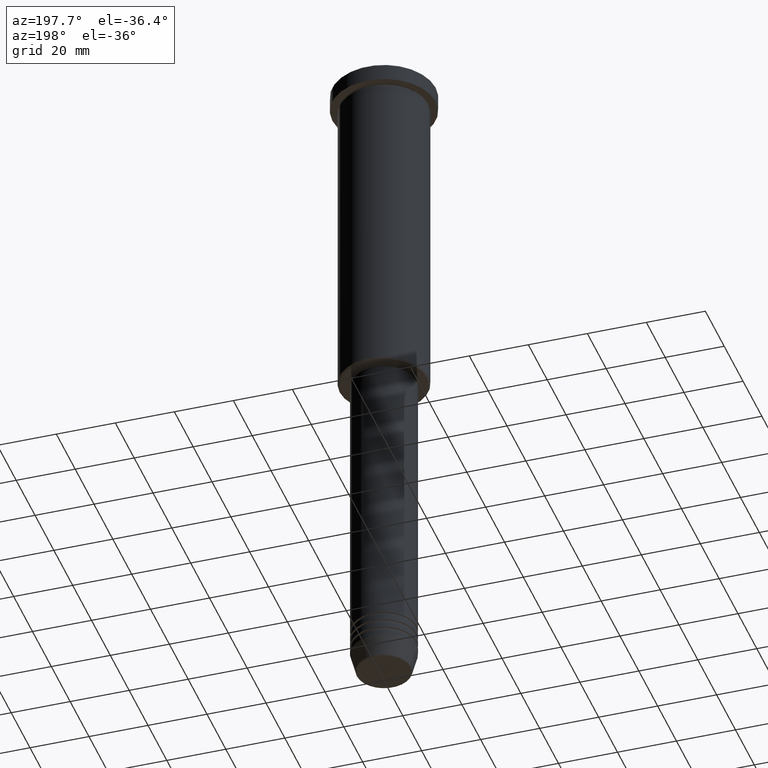
[diagram: clean part render]
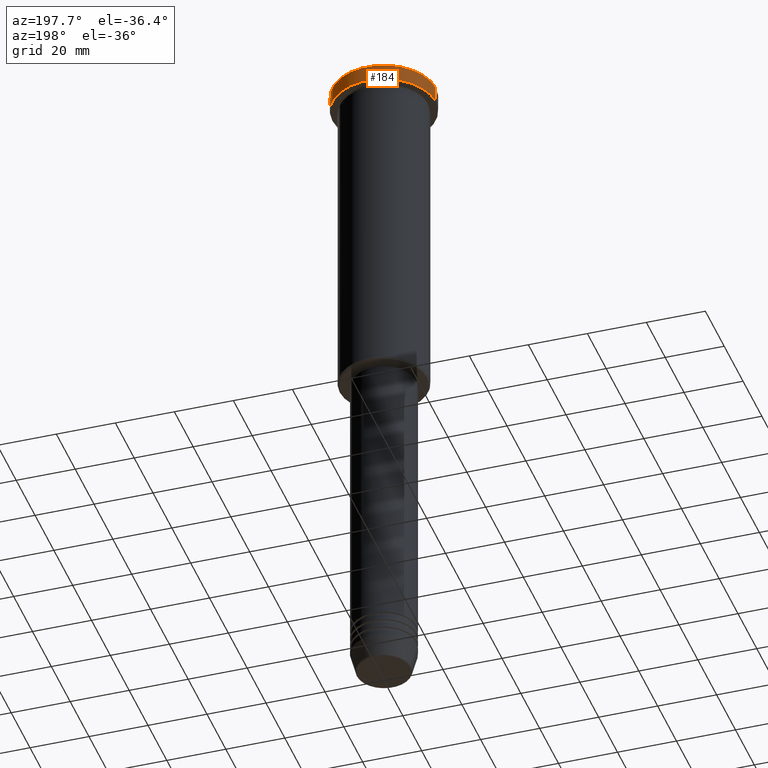
[diagram: same view with one face highlighted and labeled with its STEP entity id]
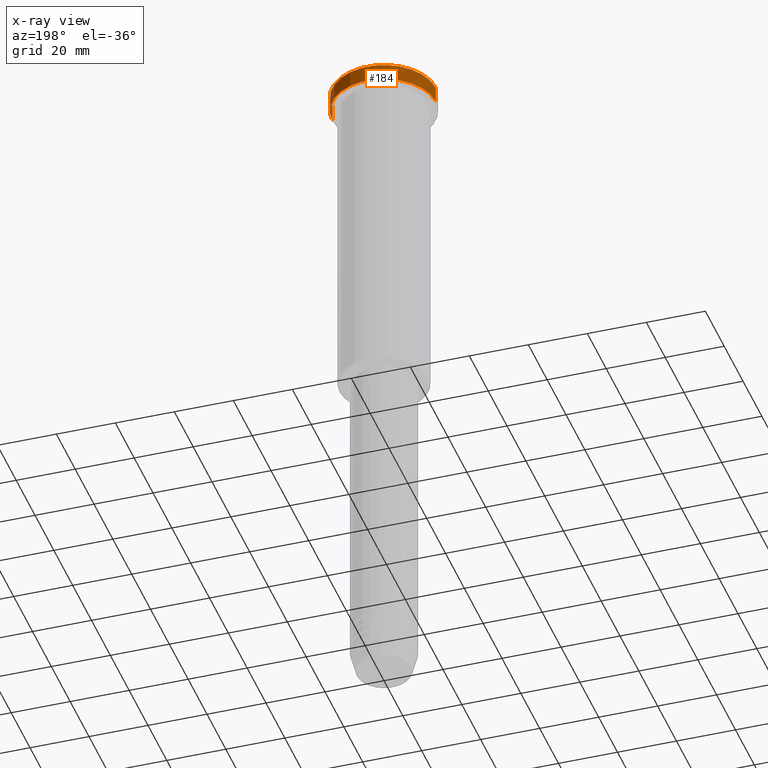
[diagram: x-ray of the same camera — body ghosted, the highlighted face saturated]
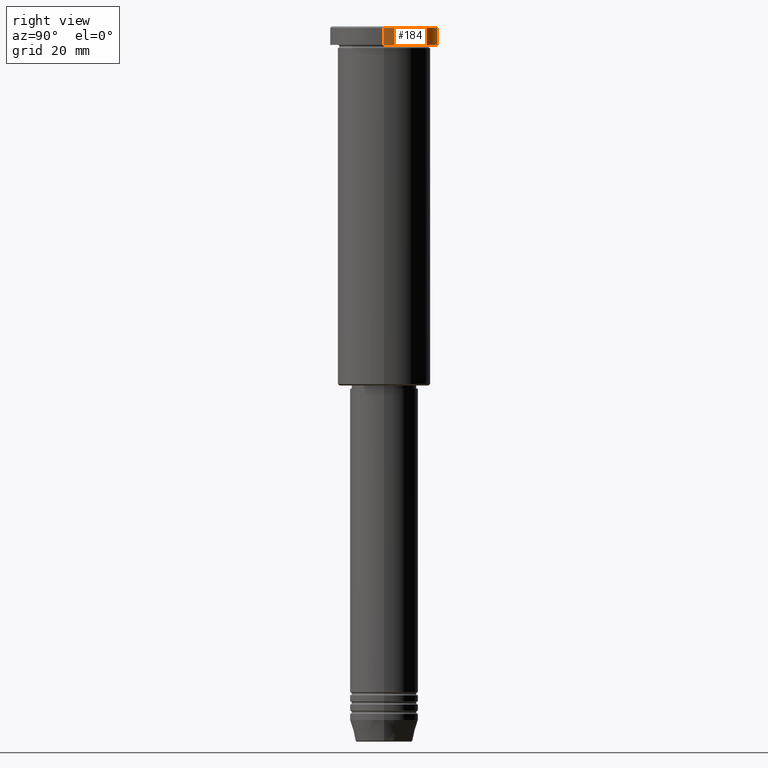
[diagram: same view with one face highlighted and labeled with its STEP entity id]
A machine part, auxiliary view. The second image highlights one B-rep face of the part: STEP entity #184.
The next image is the same camera in x-ray: the body ghosted, the highlighted face saturated — about 0% of this face is hidden behind the body in this view.
A second angle (right view) of the same face is appended — the face is thin or edge-on in the first view.
In plain terms, the highlighted cylindrical surface (partial cylindrical patch) has radius 17.5 mm, axis along (-0, -0, 1).
Its self-contained STEP definition (entity closure, byte-faithful):
#2 = VERTEX_POINT ( 'NONE', #823 ) ;
#14 = DIRECTION ( 'NONE',  ( -0.000000000000000000, -0.000000000000000000, 1.000000000000000000 ) ) ;
#81 = ORIENTED_EDGE ( 'NONE', *, *, #1066, .T. ) ;
#117 = CARTESIAN_POINT ( 'NONE',  ( -17.50000000000000000, 2.143131898507868248E-15, 0.000000000000000000 ) ) ;
#125 = VERTEX_POINT ( 'NONE', #1168 ) ;
#184 = ADVANCED_FACE ( 'NONE', ( #667 ), #568, .T. ) ;
#229 = VERTEX_POINT ( 'NONE', #482 ) ;
#284 = DIRECTION ( 'NONE',  ( -0.000000000000000000, -0.000000000000000000, 1.000000000000000000 ) ) ;
#297 = DIRECTION ( 'NONE',  ( 0.000000000000000000, 0.000000000000000000, -1.000000000000000000 ) ) ;
#311 = EDGE_CURVE ( 'NONE', #229, #125, #753, .T. ) ;
#347 = ORIENTED_EDGE ( 'NONE', *, *, #930, .F. ) ;
#387 = CARTESIAN_POINT ( 'NONE',  ( 0.000000000000000000, 0.000000000000000000, -0.5000000000000559552 ) ) ;
#434 = AXIS2_PLACEMENT_3D ( 'NONE', #387, #297, #665 ) ;
#469 = LINE ( 'NONE', #913, #1058 ) ;
#482 = CARTESIAN_POINT ( 'NONE',  ( 17.50000000000000000, 0.000000000000000000, -5.999999999999995559 ) ) ;
#568 = CYLINDRICAL_SURFACE ( 'NONE', #827, 17.50000000000000000 ) ;
#571 = CARTESIAN_POINT ( 'NONE',  ( 17.50000000000000000, 0.000000000000000000, -0.5000000000000559552 ) ) ;
#579 = LINE ( 'NONE', #117, #1175 ) ;
#591 = DIRECTION ( 'NONE',  ( 1.000000000000000000, 0.000000000000000000, 0.000000000000000000 ) ) ;
#644 = VERTEX_POINT ( 'NONE', #571 ) ;
#665 = DIRECTION ( 'NONE',  ( 1.000000000000000000, 0.000000000000000000, 0.000000000000000000 ) ) ;
#667 = FACE_OUTER_BOUND ( 'NONE', #1181, .T. ) ;
#711 = ORIENTED_EDGE ( 'NONE', *, *, #311, .T. ) ;
#753 = CIRCLE ( 'NONE', #792, 17.50000000000000000 ) ;
#792 = AXIS2_PLACEMENT_3D ( 'NONE', #947, #1119, #591 ) ;
#823 = CARTESIAN_POINT ( 'NONE',  ( -17.50000000000000000, 2.143131898507868248E-15, -0.5000000000000559552 ) ) ;
#827 = AXIS2_PLACEMENT_3D ( 'NONE', #1029, #284, #1007 ) ;
#856 = ORIENTED_EDGE ( 'NONE', *, *, #1167, .T. ) ;
#913 = CARTESIAN_POINT ( 'NONE',  ( 17.50000000000000000, 0.000000000000000000, 0.000000000000000000 ) ) ;
#930 = EDGE_CURVE ( 'NONE', #229, #644, #469, .T. ) ;
#947 = CARTESIAN_POINT ( 'NONE',  ( 0.000000000000000000, 0.000000000000000000, -5.999999999999995559 ) ) ;
#986 = CIRCLE ( 'NONE', #434, 17.50000000000000000 ) ;
#1007 = DIRECTION ( 'NONE',  ( 1.000000000000000000, 0.000000000000000000, 0.000000000000000000 ) ) ;
#1013 = DIRECTION ( 'NONE',  ( -0.000000000000000000, -0.000000000000000000, 1.000000000000000000 ) ) ;
#1029 = CARTESIAN_POINT ( 'NONE',  ( 0.000000000000000000, 0.000000000000000000, 0.000000000000000000 ) ) ;
#1058 = VECTOR ( 'NONE', #14, 1000.000000000000000 ) ;
#1066 = EDGE_CURVE ( 'NONE', #125, #2, #579, .T. ) ;
#1119 = DIRECTION ( 'NONE',  ( -0.000000000000000000, -0.000000000000000000, 1.000000000000000000 ) ) ;
#1167 = EDGE_CURVE ( 'NONE', #2, #644, #986, .T. ) ;
#1168 = CARTESIAN_POINT ( 'NONE',  ( -17.50000000000000000, 2.143131898507868248E-15, -5.999999999999995559 ) ) ;
#1175 = VECTOR ( 'NONE', #1013, 1000.000000000000000 ) ;
#1181 = EDGE_LOOP ( 'NONE', ( #711, #81, #856, #347 ) ) ;